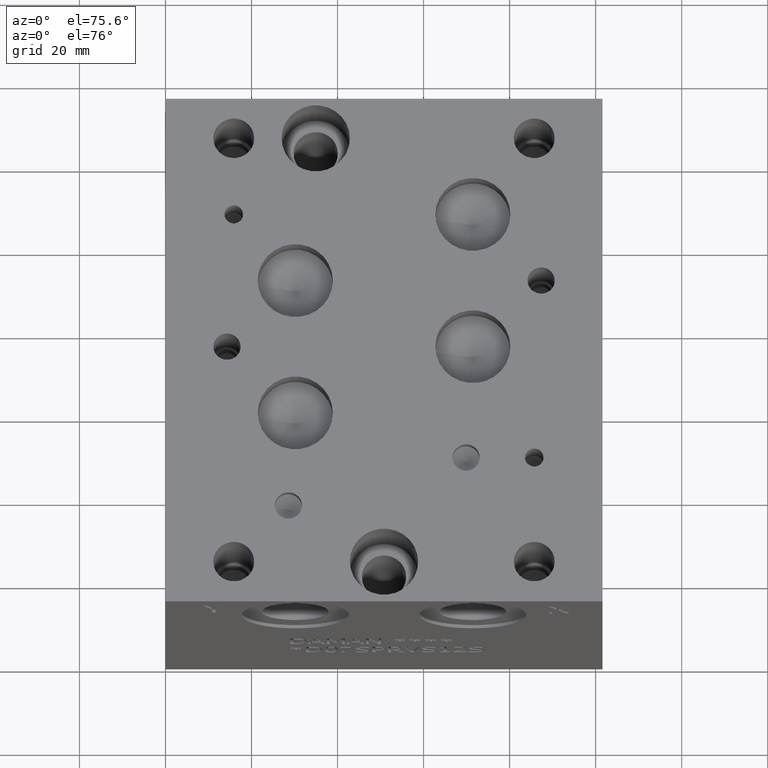
[diagram: clean part render]
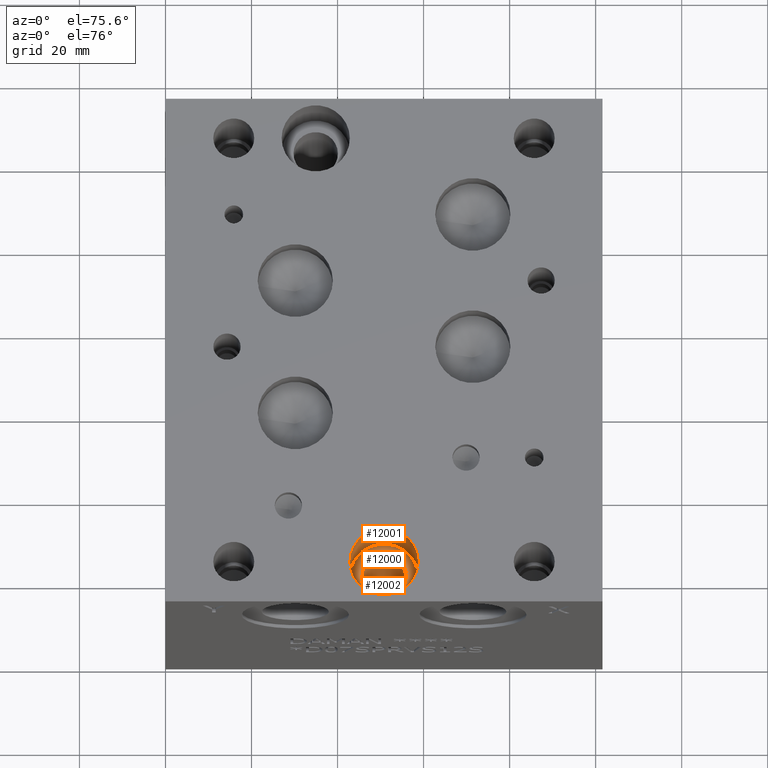
[diagram: same view with one multi-face feature highlighted, each face labeled with its STEP entity id]
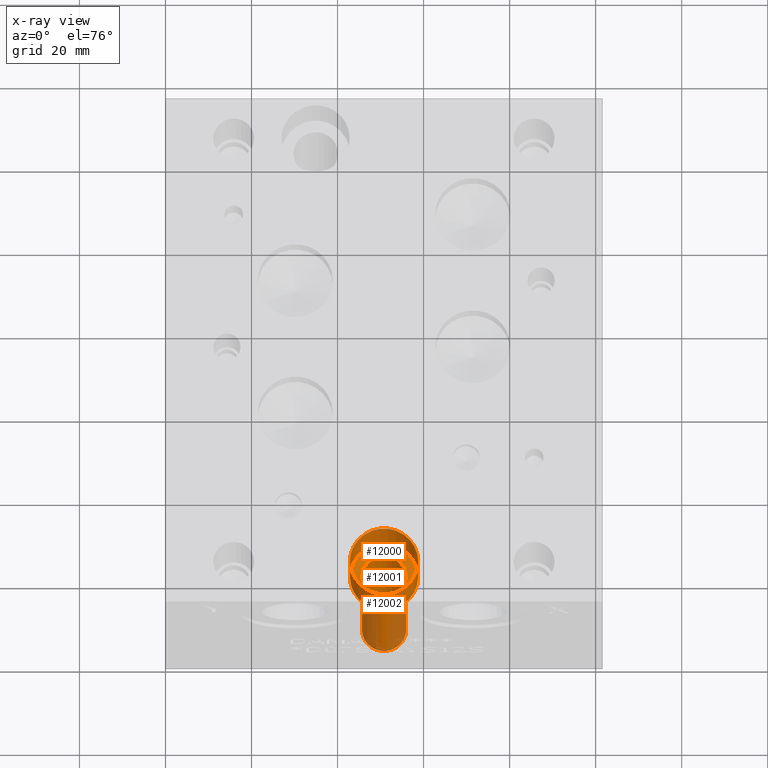
[diagram: x-ray of the same camera — body ghosted, the whole feature saturated]
A machine part, auxiliary view. The highlighted faces form ONE feature: a stepped (counterbored) hole: 2 coaxial cylindrical walls of radii 5.1562 -> 7.9375 mm joined by 1 annular planar shoulder face(s). The faces share edges in the B-rep.
The next image is the same camera in x-ray: the body ghosted and the whole hole feature saturated, so the bore chain is visible through the body.
Their STEP definitions:
[1] entity #12001 (Cylinder):
#68=CYLINDRICAL_SURFACE('',#12673,7.9375);
#317=CIRCLE('',#12670,7.9375);
#318=CIRCLE('',#12671,7.9375);
#320=CIRCLE('',#12674,7.9375);
#321=CIRCLE('',#12675,7.9375);
#1495=FACE_OUTER_BOUND('',#2172,.T.);
#2172=EDGE_LOOP('',(#10391,#10392,#10393,#10394,#10395,#10396));
#3313=LINE('',#20574,#4423);
#4423=VECTOR('',#15101,7.9375);
#5510=VERTEX_POINT('',#20563);
#5511=VERTEX_POINT('',#20564);
#5513=VERTEX_POINT('',#20570);
#5514=VERTEX_POINT('',#20571);
#7164=EDGE_CURVE('',#5510,#5511,#317,.T.);
#7165=EDGE_CURVE('',#5511,#5510,#318,.T.);
#7167=EDGE_CURVE('',#5513,#5514,#320,.T.);
#7168=EDGE_CURVE('',#5514,#5513,#321,.T.);
#7169=EDGE_CURVE('',#5514,#5511,#3313,.T.);
#10391=ORIENTED_EDGE('',*,*,#7167,.F.);
#10392=ORIENTED_EDGE('',*,*,#7168,.F.);
#10393=ORIENTED_EDGE('',*,*,#7169,.T.);
#10394=ORIENTED_EDGE('',*,*,#7164,.F.);
#10395=ORIENTED_EDGE('',*,*,#7165,.F.);
#10396=ORIENTED_EDGE('',*,*,#7169,.F.);
#12001=ADVANCED_FACE('',(#1495),#68,.F.);
#12670=AXIS2_PLACEMENT_3D('',#20565,#15089,#15090);
#12671=AXIS2_PLACEMENT_3D('',#20566,#15091,#15092);
#12673=AXIS2_PLACEMENT_3D('',#20569,#15095,#15096);
#12674=AXIS2_PLACEMENT_3D('',#20572,#15097,#15098);
#12675=AXIS2_PLACEMENT_3D('',#20573,#15099,#15100);
#15089=DIRECTION('center_axis',(0.,0.,1.));
#15090=DIRECTION('ref_axis',(1.,0.,0.));
#15091=DIRECTION('center_axis',(0.,0.,1.));
#15092=DIRECTION('ref_axis',(1.,0.,0.));
#15095=DIRECTION('center_axis',(0.,0.,1.));
#15096=DIRECTION('ref_axis',(1.,0.,0.));
#15097=DIRECTION('center_axis',(0.,0.,-1.));
#15098=DIRECTION('ref_axis',(1.,0.,0.));
#15099=DIRECTION('center_axis',(0.,0.,-1.));
#15100=DIRECTION('ref_axis',(1.,0.,0.));
#15101=DIRECTION('',(0.,0.,-1.));
#20563=CARTESIAN_POINT('',(58.7375,9.525,49.2252));
#20564=CARTESIAN_POINT('',(42.8625,9.525,49.2252));
#20565=CARTESIAN_POINT('Origin',(50.8,9.525,49.2252));
#20566=CARTESIAN_POINT('Origin',(50.8,9.525,49.2252));
#20569=CARTESIAN_POINT('Origin',(50.8,9.525,56.3626));
#20570=CARTESIAN_POINT('',(58.7375,9.525,63.5));
#20571=CARTESIAN_POINT('',(42.8625,9.525,63.5));
#20572=CARTESIAN_POINT('Origin',(50.8,9.525,63.5));
#20573=CARTESIAN_POINT('Origin',(50.8,9.525,63.5));
#20574=CARTESIAN_POINT('',(42.8625,9.525,56.3626));
[2] entity #12002 (Cylinder):
#69=CYLINDRICAL_SURFACE('',#12676,5.1562);
#145=CIRCLE('',#12082,5.1562);
#319=CIRCLE('',#12672,5.1562);
#1496=FACE_OUTER_BOUND('',#2173,.T.);
#2173=EDGE_LOOP('',(#10397,#10398,#10399,#10400));
#3314=LINE('',#20576,#4424);
#4424=VECTOR('',#15104,5.1562);
#4515=VERTEX_POINT('',#15640);
#5512=VERTEX_POINT('',#20567);
#5682=EDGE_CURVE('',#4515,#4515,#145,.T.);
#7166=EDGE_CURVE('',#5512,#5512,#319,.T.);
#7170=EDGE_CURVE('',#5512,#4515,#3314,.T.);
#10397=ORIENTED_EDGE('',*,*,#7166,.T.);
#10398=ORIENTED_EDGE('',*,*,#7170,.T.);
#10399=ORIENTED_EDGE('',*,*,#5682,.F.);
#10400=ORIENTED_EDGE('',*,*,#7170,.F.);
#12002=ADVANCED_FACE('',(#1496),#69,.F.);
#12082=AXIS2_PLACEMENT_3D('',#15641,#12900,#12901);
#12672=AXIS2_PLACEMENT_3D('',#20568,#15093,#15094);
#12676=AXIS2_PLACEMENT_3D('',#20575,#15102,#15103);
#12900=DIRECTION('center_axis',(0.,0.,1.));
#12901=DIRECTION('ref_axis',(1.,0.,0.));
#15093=DIRECTION('center_axis',(0.,0.,1.));
#15094=DIRECTION('ref_axis',(1.,0.,0.));
#15102=DIRECTION('center_axis',(0.,0.,1.));
#15103=DIRECTION('ref_axis',(1.,0.,0.));
#15104=DIRECTION('',(0.,0.,-1.));
#15640=CARTESIAN_POINT('',(45.6438,9.525,0.));
#15641=CARTESIAN_POINT('Origin',(50.8,9.525,0.));
#20567=CARTESIAN_POINT('',(45.6438,9.525,49.2252));
#20568=CARTESIAN_POINT('Origin',(50.8,9.525,49.2252));
#20575=CARTESIAN_POINT('Origin',(50.8,9.525,-106.533033555248));
#20576=CARTESIAN_POINT('',(45.6438,9.525,-106.533033555248));
[3] entity #12000 (Plane):
#317=CIRCLE('',#12670,7.9375);
#318=CIRCLE('',#12671,7.9375);
#319=CIRCLE('',#12672,5.1562);
#459=FACE_BOUND('',#2171,.T.);
#1494=FACE_OUTER_BOUND('',#2170,.T.);
#2170=EDGE_LOOP('',(#10388,#10389));
#2171=EDGE_LOOP('',(#10390));
#5510=VERTEX_POINT('',#20563);
#5511=VERTEX_POINT('',#20564);
#5512=VERTEX_POINT('',#20567);
#7164=EDGE_CURVE('',#5510,#5511,#317,.T.);
#7165=EDGE_CURVE('',#5511,#5510,#318,.T.);
#7166=EDGE_CURVE('',#5512,#5512,#319,.T.);
#10388=ORIENTED_EDGE('',*,*,#7164,.T.);
#10389=ORIENTED_EDGE('',*,*,#7165,.T.);
#10390=ORIENTED_EDGE('',*,*,#7166,.F.);
#10978=PLANE('',#12669);
#12000=ADVANCED_FACE('',(#1494,#459),#10978,.T.);
#12669=AXIS2_PLACEMENT_3D('',#20562,#15087,#15088);
#12670=AXIS2_PLACEMENT_3D('',#20565,#15089,#15090);
#12671=AXIS2_PLACEMENT_3D('',#20566,#15091,#15092);
#12672=AXIS2_PLACEMENT_3D('',#20568,#15093,#15094);
#15087=DIRECTION('center_axis',(0.,0.,1.));
#15088=DIRECTION('ref_axis',(1.,0.,0.));
#15089=DIRECTION('center_axis',(0.,0.,1.));
#15090=DIRECTION('ref_axis',(1.,0.,0.));
#15091=DIRECTION('center_axis',(0.,0.,1.));
#15092=DIRECTION('ref_axis',(1.,0.,0.));
#15093=DIRECTION('center_axis',(0.,0.,1.));
#15094=DIRECTION('ref_axis',(1.,0.,0.));
#20562=CARTESIAN_POINT('Origin',(50.8,9.525,49.2252));
#20563=CARTESIAN_POINT('',(58.7375,9.525,49.2252));
#20564=CARTESIAN_POINT('',(42.8625,9.525,49.2252));
#20565=CARTESIAN_POINT('Origin',(50.8,9.525,49.2252));
#20566=CARTESIAN_POINT('Origin',(50.8,9.525,49.2252));
#20567=CARTESIAN_POINT('',(45.6438,9.525,49.2252));
#20568=CARTESIAN_POINT('Origin',(50.8,9.525,49.2252));